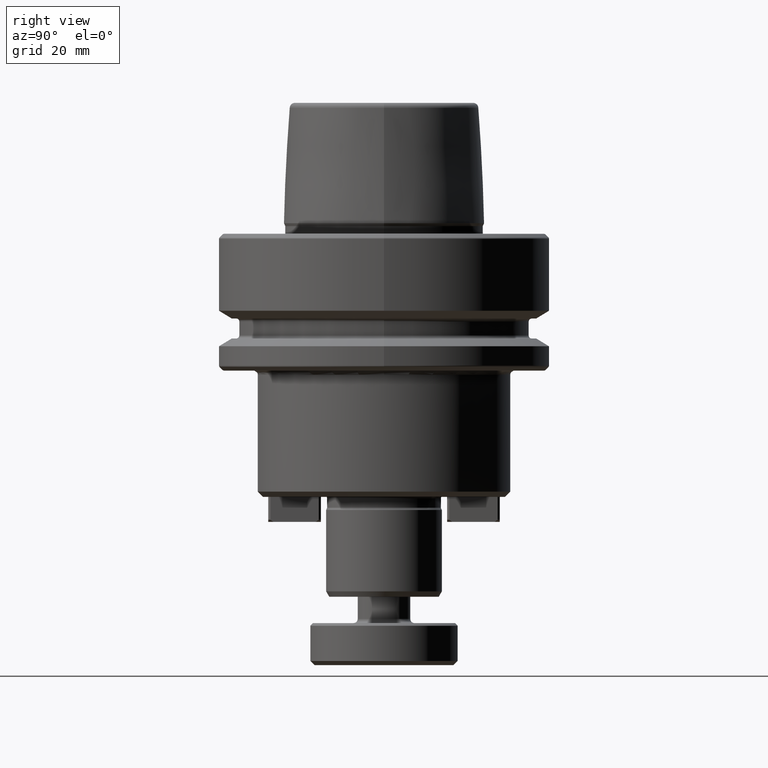
[diagram: clean part render]
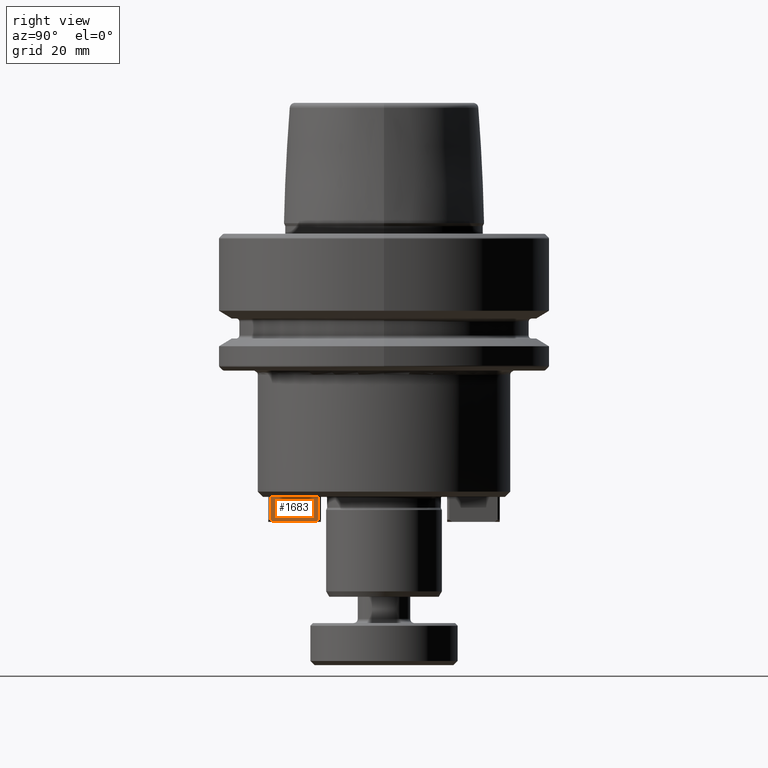
[diagram: same view with one face highlighted and labeled with its STEP entity id]
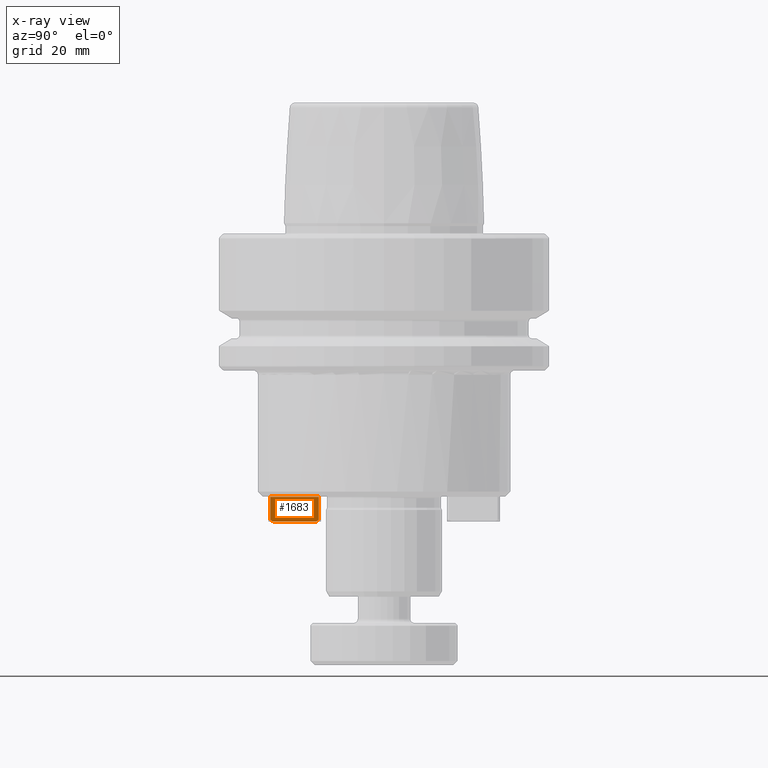
[diagram: x-ray of the same camera — body ghosted, the highlighted face saturated]
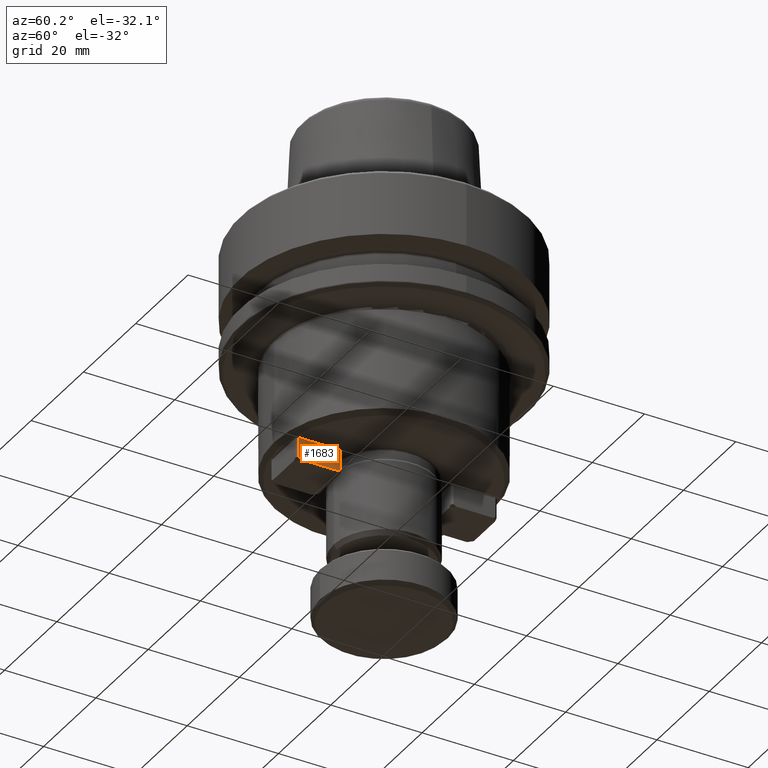
[diagram: same view with one face highlighted and labeled with its STEP entity id]
A machine part, right view. The second image highlights one B-rep face of the part: STEP entity #1683.
The next image is the same camera in x-ray: the body ghosted, the highlighted face saturated — about 0% of this face is hidden behind the body in this view.
A second angle (auxiliary view) of the same face is appended — the face is thin or edge-on in the first view.
In plain terms, the highlighted planar face has unit normal (-1, 0, 0).
Its self-contained STEP definition (entity closure, byte-faithful):
#12 = CARTESIAN_POINT ( 'NONE',  ( -7.144329705222389700, -25.88675662669775000, 8.970756453405455100 ) ) ;
#98 = DIRECTION ( 'NONE',  ( -0.0000000000000000000, -1.870988165364012400E-016, 1.000000000000000000 ) ) ;
#268 = EDGE_CURVE ( 'NONE', #2611, #1034, #2200, .T. ) ;
#269 = PLANE ( 'NONE',  #1808 ) ;
#356 = LINE ( 'NONE', #486, #2222 ) ;
#417 = FACE_OUTER_BOUND ( 'NONE', #567, .T. ) ;
#474 = CARTESIAN_POINT ( 'NONE',  ( -7.144329705222389700, -25.88675662669775000, 13.32075645340544800 ) ) ;
#486 = CARTESIAN_POINT ( 'NONE',  ( -7.144329705222389700, -25.88675662669775000, 13.32075645340544800 ) ) ;
#567 = EDGE_LOOP ( 'NONE', ( #586, #2802, #2058, #2397, #760, #1080 ) ) ;
#586 = ORIENTED_EDGE ( 'NONE', *, *, #268, .F. ) ;
#615 = LINE ( 'NONE', #1582, #1768 ) ;
#679 = CARTESIAN_POINT ( 'NONE',  ( -7.144329705222387100, -11.26388024333063600, 12.80530911762077500 ) ) ;
#747 = DIRECTION ( 'NONE',  ( -9.427844978134825100E-017, -1.000000000000000000, -7.542275982507860100E-016 ) ) ;
#760 = ORIENTED_EDGE ( 'NONE', *, *, #1775, .F. ) ;
#943 = DIRECTION ( 'NONE',  ( -1.000000000000000000, 9.427844978134825100E-017, 1.763938637897679500E-032 ) ) ;
#949 = EDGE_CURVE ( 'NONE', #2124, #1034, #615, .T. ) ;
#961 = DIRECTION ( 'NONE',  ( -9.427844978134825100E-017, -1.000000000000000000, -7.542275982507860100E-016 ) ) ;
#1024 = LINE ( 'NONE', #2519, #1639 ) ;
#1034 = VERTEX_POINT ( 'NONE', #1842 ) ;
#1080 = ORIENTED_EDGE ( 'NONE', *, *, #949, .T. ) ;
#1095 = DIRECTION ( 'NONE',  ( 7.697803190163680500E-017, 0.8164965809277223700, -0.5773502691896308400 ) ) ;
#1164 = CARTESIAN_POINT ( 'NONE',  ( -7.144329705222388900, -16.68675662669775400, 13.32075645340545500 ) ) ;
#1202 = VECTOR ( 'NONE', #98, 1000.000000000000000 ) ;
#1244 = CARTESIAN_POINT ( 'NONE',  ( -7.144329705222388900, -16.68675662669775400, 8.970756453405455100 ) ) ;
#1373 = DIRECTION ( 'NONE',  ( 7.697803190163683000E-017, 0.8164965809277222600, 0.5773502691896311700 ) ) ;
#1399 = DIRECTION ( 'NONE',  ( -0.0000000000000000000, -1.870988165364012400E-016, 1.000000000000000000 ) ) ;
#1582 = CARTESIAN_POINT ( 'NONE',  ( -7.144329705222388900, -19.97629967673164600, 4.791432264173209000 ) ) ;
#1617 = VECTOR ( 'NONE', #747, 1000.000000000000000 ) ;
#1639 = VECTOR ( 'NONE', #1399, 1000.000000000000000 ) ;
#1666 = VERTEX_POINT ( 'NONE', #474 ) ;
#1669 = CARTESIAN_POINT ( 'NONE',  ( -7.144329705222389700, -25.88675662669775000, 8.570756453405451200 ) ) ;
#1683 = ADVANCED_FACE ( 'NONE', ( #417 ), #269, .F. ) ;
#1710 = VECTOR ( 'NONE', #1373, 1000.000000000000000 ) ;
#1768 = VECTOR ( 'NONE', #1095, 1000.000000000000200 ) ;
#1775 = EDGE_CURVE ( 'NONE', #2124, #1666, #1959, .T. ) ;
#1808 = AXIS2_PLACEMENT_3D ( 'NONE', #2070, #943, #2527 ) ;
#1842 = CARTESIAN_POINT ( 'NONE',  ( -7.144329705222389700, -25.32107120174850900, 8.570756453405451200 ) ) ;
#1959 = LINE ( 'NONE', #1669, #1202 ) ;
#2058 = ORIENTED_EDGE ( 'NONE', *, *, #2654, .T. ) ;
#2070 = CARTESIAN_POINT ( 'NONE',  ( -7.144329705222389700, -25.88675662669775000, 8.570756453405451200 ) ) ;
#2079 = EDGE_CURVE ( 'NONE', #2611, #2911, #2287, .T. ) ;
#2124 = VERTEX_POINT ( 'NONE', #12 ) ;
#2200 = LINE ( 'NONE', #2629, #1617 ) ;
#2222 = VECTOR ( 'NONE', #961, 1000.000000000000000 ) ;
#2287 = LINE ( 'NONE', #679, #1710 ) ;
#2397 = ORIENTED_EDGE ( 'NONE', *, *, #2755, .T. ) ;
#2519 = CARTESIAN_POINT ( 'NONE',  ( -7.144329705222388900, -16.68675662669775400, 8.570756453405458300 ) ) ;
#2527 = DIRECTION ( 'NONE',  ( -9.427844978134825100E-017, -1.000000000000000000, 0.0000000000000000000 ) ) ;
#2611 = VERTEX_POINT ( 'NONE', #2721 ) ;
#2629 = CARTESIAN_POINT ( 'NONE',  ( -7.144329705222389700, -25.88675662669775000, 8.570756453405451200 ) ) ;
#2654 = EDGE_CURVE ( 'NONE', #2911, #2736, #1024, .T. ) ;
#2721 = CARTESIAN_POINT ( 'NONE',  ( -7.144329705222388900, -17.25244205164698000, 8.570756453405458300 ) ) ;
#2736 = VERTEX_POINT ( 'NONE', #1164 ) ;
#2755 = EDGE_CURVE ( 'NONE', #2736, #1666, #356, .T. ) ;
#2802 = ORIENTED_EDGE ( 'NONE', *, *, #2079, .T. ) ;
#2911 = VERTEX_POINT ( 'NONE', #1244 ) ;